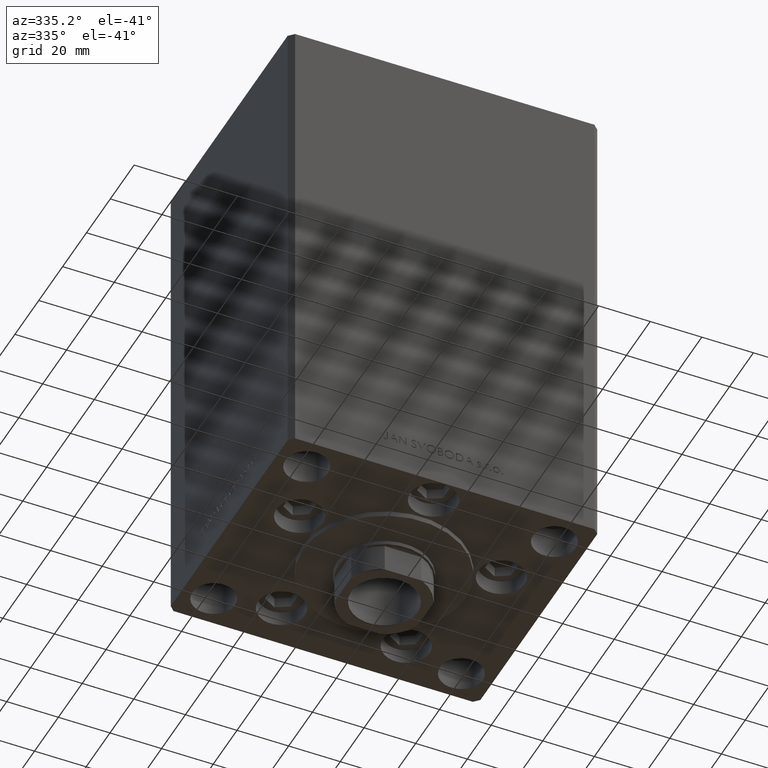
[diagram: clean part render]
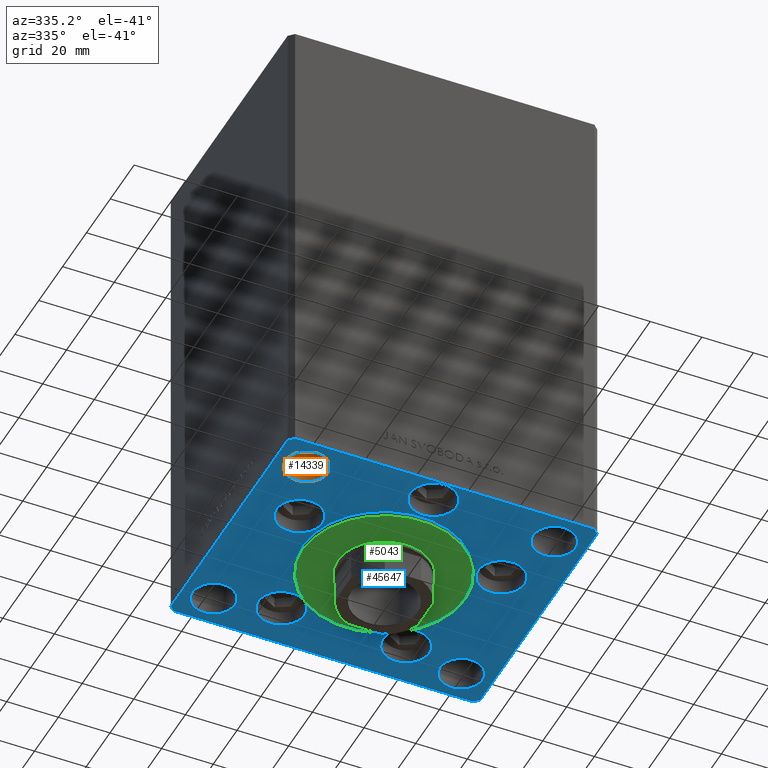
[diagram: same view with three faces highlighted in distinct colors, each labeled with its STEP entity id]
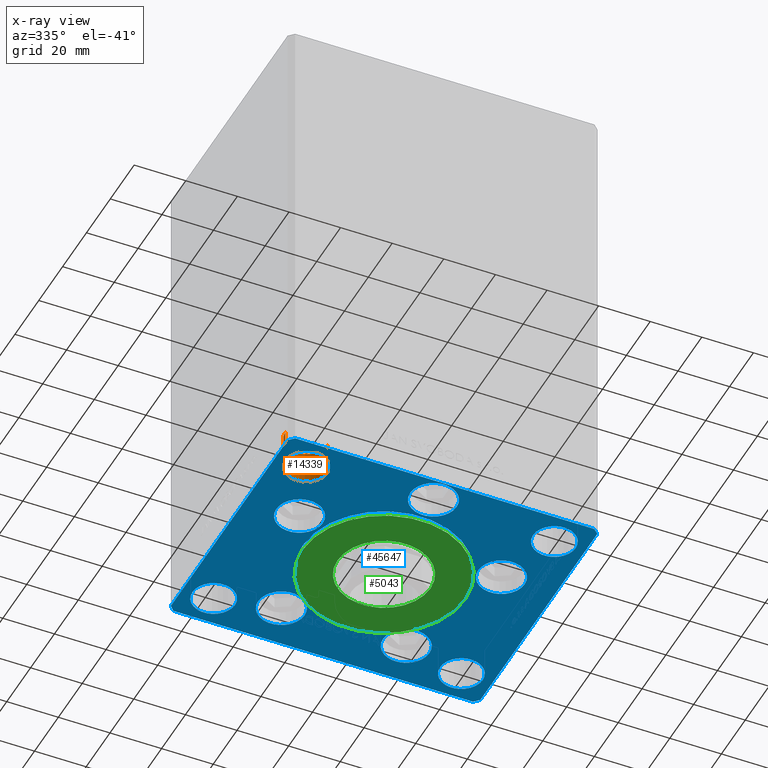
[diagram: x-ray of the same camera — body ghosted, the three highlighted faces saturated]
A machine part, auxiliary view with three faces highlighted in distinct colors.
The next image is the same camera in x-ray (body ghosted, the three faces saturated) — at least one of them is partly hidden behind the body in this view.
Their STEP definitions:

[orange] entity #14339 — the highlighted cylindrical surface (edge-blend (fillet) strip) has radius 8.25 mm, axis along (0, 0, -1).
#1310 = ORIENTED_EDGE ( 'NONE', *, *, #35070, .F. ) ;
#1383 = ORIENTED_EDGE ( 'NONE', *, *, #17207, .T. ) ;
#6439 = AXIS2_PLACEMENT_3D ( 'NONE', #7204, #10680, #33520 ) ;
#6691 = CARTESIAN_POINT ( 'NONE',  ( 48.00000000000000000, -39.00000000000001421, -13.00000000000000000 ) ) ;
#7204 = CARTESIAN_POINT ( 'NONE',  ( 48.00000000000000000, -39.00000000000001421, 0.000000000000000000 ) ) ;
#7436 = DIRECTION ( 'NONE',  ( -0.000000000000000000, -0.000000000000000000, 1.000000000000000000 ) ) ;
#9311 = DIRECTION ( 'NONE',  ( -0.000000000000000000, -0.000000000000000000, 1.000000000000000000 ) ) ;
#10680 = DIRECTION ( 'NONE',  ( 0.000000000000000000, 0.000000000000000000, 1.000000000000000000 ) ) ;
#12008 = CIRCLE ( 'NONE', #6439, 8.249999999999992895 ) ;
#14339 = ADVANCED_FACE ( 'NONE', ( #21591 ), #29047, .F. ) ;
#15363 = LINE ( 'NONE', #34482, #43894 ) ;
#15752 = VERTEX_POINT ( 'NONE', #41105 ) ;
#16129 = ORIENTED_EDGE ( 'NONE', *, *, #29216, .T. ) ;
#17207 = EDGE_CURVE ( 'NONE', #27604, #44335, #42360, .T. ) ;
#20562 = CARTESIAN_POINT ( 'NONE',  ( 56.24999999999999289, -39.00000000000001421, -13.00000000000000000 ) ) ;
#21591 = FACE_OUTER_BOUND ( 'NONE', #24556, .T. ) ;
#24450 = CARTESIAN_POINT ( 'NONE',  ( 56.24999999999999289, -39.00000000000001421, -13.00000000000000000 ) ) ;
#24556 = EDGE_LOOP ( 'NONE', ( #1310, #32283, #1383, #16129 ) ) ;
#24900 = VERTEX_POINT ( 'NONE', #25721 ) ;
#25721 = CARTESIAN_POINT ( 'NONE',  ( 39.75000000000000711, -39.00000000000001421, -13.00000000000000000 ) ) ;
#26920 = DIRECTION ( 'NONE',  ( 0.000000000000000000, 0.000000000000000000, 1.000000000000000000 ) ) ;
#27604 = VERTEX_POINT ( 'NONE', #20562 ) ;
#27652 = DIRECTION ( 'NONE',  ( 1.000000000000000000, 0.000000000000000000, 0.000000000000000000 ) ) ;
#28546 = VECTOR ( 'NONE', #9311, 1000.000000000000000 ) ;
#29047 = CYLINDRICAL_SURFACE ( 'NONE', #35615, 8.249999999999992895 ) ;
#29216 = EDGE_CURVE ( 'NONE', #44335, #15752, #12008, .T. ) ;
#31999 = CARTESIAN_POINT ( 'NONE',  ( 56.24999999999999289, -39.00000000000001421, 0.000000000000000000 ) ) ;
#32283 = ORIENTED_EDGE ( 'NONE', *, *, #46017, .F. ) ;
#33520 = DIRECTION ( 'NONE',  ( 1.000000000000000000, 0.000000000000000000, 0.000000000000000000 ) ) ;
#33803 = CIRCLE ( 'NONE', #45736, 8.249999999999992895 ) ;
#34237 = DIRECTION ( 'NONE',  ( -0.000000000000000000, -0.000000000000000000, 1.000000000000000000 ) ) ;
#34482 = CARTESIAN_POINT ( 'NONE',  ( 39.75000000000000711, -39.00000000000001421, -13.00000000000000000 ) ) ;
#35070 = EDGE_CURVE ( 'NONE', #24900, #15752, #15363, .T. ) ;
#35615 = AXIS2_PLACEMENT_3D ( 'NONE', #6691, #7436, #40965 ) ;
#40965 = DIRECTION ( 'NONE',  ( 1.000000000000000000, 0.000000000000000000, 0.000000000000000000 ) ) ;
#41105 = CARTESIAN_POINT ( 'NONE',  ( 39.75000000000000711, -39.00000000000001421, 0.000000000000000000 ) ) ;
#42360 = LINE ( 'NONE', #24450, #28546 ) ;
#43894 = VECTOR ( 'NONE', #34237, 1000.000000000000000 ) ;
#44335 = VERTEX_POINT ( 'NONE', #31999 ) ;
#45736 = AXIS2_PLACEMENT_3D ( 'NONE', #45803, #26920, #27652 ) ;
#45803 = CARTESIAN_POINT ( 'NONE',  ( 48.00000000000000000, -39.00000000000001421, -13.00000000000000000 ) ) ;
#46017 = EDGE_CURVE ( 'NONE', #27604, #24900, #33803, .T. ) ;

[blue] entity #45647 — the highlighted planar face has unit normal (0, 0, -1).
#89 = DIRECTION ( 'NONE',  ( 0.000000000000000000, 0.000000000000000000, 1.000000000000000000 ) ) ;
#141 = CARTESIAN_POINT ( 'NONE',  ( 56.24999999999999289, 39.00000000000000000, 0.000000000000000000 ) ) ;
#155 = CIRCLE ( 'NONE', #21558, 9.000000000000001776 ) ;
#257 = ORIENTED_EDGE ( 'NONE', *, *, #41084, .T. ) ;
#315 = VECTOR ( 'NONE', #1857, 1000.000000000000000 ) ;
#492 = EDGE_CURVE ( 'NONE', #34975, #44632, #21006, .T. ) ;
#601 = EDGE_LOOP ( 'NONE', ( #40443, #5049 ) ) ;
#613 = CARTESIAN_POINT ( 'NONE',  ( -39.12657522565563539, -13.83333333333332860, 0.000000000000000000 ) ) ;
#762 = VERTEX_POINT ( 'NONE', #29076 ) ;
#859 = CARTESIAN_POINT ( 'NONE',  ( 0.000000000000000000, 0.000000000000000000, 0.000000000000000000 ) ) ;
#1025 = VERTEX_POINT ( 'NONE', #18263 ) ;
#1074 = CARTESIAN_POINT ( 'NONE',  ( 48.00000000000000000, 39.00000000000000000, 0.000000000000000000 ) ) ;
#1107 = FACE_BOUND ( 'NONE', #601, .T. ) ;
#1115 = CIRCLE ( 'NONE', #37610, 8.249999999999992895 ) ;
#1392 = VERTEX_POINT ( 'NONE', #38557 ) ;
#1512 = ORIENTED_EDGE ( 'NONE', *, *, #10146, .F. ) ;
#1857 = DIRECTION ( 'NONE',  ( 1.000000000000000000, 9.570888143320313916E-16, 0.000000000000000000 ) ) ;
#2327 = EDGE_CURVE ( 'NONE', #21847, #27952, #39262, .T. ) ;
#2523 = LINE ( 'NONE', #29589, #45877 ) ;
#2831 = CARTESIAN_POINT ( 'NONE',  ( 39.12657522565563539, -13.83333333333332860, 0.000000000000000000 ) ) ;
#3249 = AXIS2_PLACEMENT_3D ( 'NONE', #36149, #17273, #9085 ) ;
#3334 = AXIS2_PLACEMENT_3D ( 'NONE', #27925, #16729, #43077 ) ;
#3413 = DIRECTION ( 'NONE',  ( 0.000000000000000000, 0.000000000000000000, 1.000000000000000000 ) ) ;
#3524 = CARTESIAN_POINT ( 'NONE',  ( 60.00000000000001421, -48.99999999999992895, 0.000000000000000000 ) ) ;
#3604 = CARTESIAN_POINT ( 'NONE',  ( 30.12657522565563539, -13.83333333333332682, 0.000000000000000000 ) ) ;
#4338 = DIRECTION ( 'NONE',  ( 1.000000000000000000, 0.000000000000000000, 0.000000000000000000 ) ) ;
#4455 = ORIENTED_EDGE ( 'NONE', *, *, #40245, .F. ) ;
#4586 = DIRECTION ( 'NONE',  ( 0.000000000000000000, 0.000000000000000000, 1.000000000000000000 ) ) ;
#4599 = FACE_OUTER_BOUND ( 'NONE', #11846, .T. ) ;
#4835 = CARTESIAN_POINT ( 'NONE',  ( -58.00000000000000711, -51.00000000000002842, 0.000000000000000000 ) ) ;
#5049 = ORIENTED_EDGE ( 'NONE', *, *, #28411, .F. ) ;
#5304 = AXIS2_PLACEMENT_3D ( 'NONE', #39549, #28363, #40282 ) ;
#5696 = EDGE_LOOP ( 'NONE', ( #8583, #24635 ) ) ;
#5837 = VECTOR ( 'NONE', #11316, 1000.000000000000114 ) ;
#6062 = DIRECTION ( 'NONE',  ( -0.7071067811865536790, 0.7071067811865414665, 0.000000000000000000 ) ) ;
#6216 = ORIENTED_EDGE ( 'NONE', *, *, #18763, .T. ) ;
#6439 = AXIS2_PLACEMENT_3D ( 'NONE', #7204, #10680, #33520 ) ;
#6512 = CIRCLE ( 'NONE', #34284, 9.000000000000000000 ) ;
#6551 = CIRCLE ( 'NONE', #25581, 8.249999999999992895 ) ;
#6763 = VERTEX_POINT ( 'NONE', #141 ) ;
#7065 = EDGE_CURVE ( 'NONE', #10676, #17987, #14879, .T. ) ;
#7098 = LINE ( 'NONE', #30430, #5837 ) ;
#7204 = CARTESIAN_POINT ( 'NONE',  ( 48.00000000000000000, -39.00000000000001421, 0.000000000000000000 ) ) ;
#7391 = CARTESIAN_POINT ( 'NONE',  ( 48.12657522565563539, -13.83333333333332860, 0.000000000000000000 ) ) ;
#7607 = DIRECTION ( 'NONE',  ( 0.000000000000000000, 0.000000000000000000, 1.000000000000000000 ) ) ;
#7870 = LINE ( 'NONE', #48866, #43046 ) ;
#8406 = EDGE_CURVE ( 'NONE', #17987, #10676, #12533, .T. ) ;
#8583 = ORIENTED_EDGE ( 'NONE', *, *, #21902, .F. ) ;
#8675 = LINE ( 'NONE', #16364, #22306 ) ;
#9085 = DIRECTION ( 'NONE',  ( 1.000000000000000000, 0.000000000000000000, 0.000000000000000000 ) ) ;
#9179 = DIRECTION ( 'NONE',  ( 0.000000000000000000, 0.000000000000000000, 1.000000000000000000 ) ) ;
#9202 = CARTESIAN_POINT ( 'NONE',  ( -24.19288941894913592, 33.71874999999998579, 0.000000000000000000 ) ) ;
#9284 = ORIENTED_EDGE ( 'NONE', *, *, #7065, .F. ) ;
#9428 = DIRECTION ( 'NONE',  ( 1.000000000000000000, 0.000000000000000000, 0.000000000000000000 ) ) ;
#9697 = CARTESIAN_POINT ( 'NONE',  ( -48.00000000000000000, -39.00000000000001421, 0.000000000000000000 ) ) ;
#10146 = EDGE_CURVE ( 'NONE', #11673, #6763, #17208, .T. ) ;
#10411 = ORIENTED_EDGE ( 'NONE', *, *, #22409, .F. ) ;
#10498 = EDGE_CURVE ( 'NONE', #19957, #29478, #41834, .T. ) ;
#10634 = EDGE_CURVE ( 'NONE', #26242, #30037, #34698, .T. ) ;
#10656 = CARTESIAN_POINT ( 'NONE',  ( 9.000000000000000000, -41.50000000000000000, 0.000000000000000000 ) ) ;
#10676 = VERTEX_POINT ( 'NONE', #31715 ) ;
#10680 = DIRECTION ( 'NONE',  ( 0.000000000000000000, 0.000000000000000000, 1.000000000000000000 ) ) ;
#11316 = DIRECTION ( 'NONE',  ( 0.7071067811865474617, -0.7071067811865474617, 0.000000000000000000 ) ) ;
#11356 = VERTEX_POINT ( 'NONE', #24575 ) ;
#11583 = ORIENTED_EDGE ( 'NONE', *, *, #40131, .T. ) ;
#11592 = DIRECTION ( 'NONE',  ( 0.7071067811865474617, 0.7071067811865474617, 0.000000000000000000 ) ) ;
#11673 = VERTEX_POINT ( 'NONE', #34733 ) ;
#11808 = FACE_BOUND ( 'NONE', #22408, .T. ) ;
#11846 = EDGE_LOOP ( 'NONE', ( #12796, #11583, #30357, #17989, #257, #17107, #6216, #45658 ) ) ;
#11962 = EDGE_LOOP ( 'NONE', ( #24845, #45043 ) ) ;
#12004 = DIRECTION ( 'NONE',  ( 0.000000000000000000, 0.000000000000000000, 1.000000000000000000 ) ) ;
#12008 = CIRCLE ( 'NONE', #6439, 8.249999999999992895 ) ;
#12026 = CARTESIAN_POINT ( 'NONE',  ( 58.00000000000000000, 51.00000000000000711, 0.000000000000000000 ) ) ;
#12046 = DIRECTION ( 'NONE',  ( 1.000000000000000000, 0.000000000000000000, 0.000000000000000000 ) ) ;
#12378 = CARTESIAN_POINT ( 'NONE',  ( 0.000000000000000000, -6.938893903907228378E-15, 0.000000000000000000 ) ) ;
#12533 = CIRCLE ( 'NONE', #46661, 9.000000000000000000 ) ;
#12796 = ORIENTED_EDGE ( 'NONE', *, *, #26188, .T. ) ;
#12996 = CIRCLE ( 'NONE', #19358, 8.249999999999992895 ) ;
#13037 = LINE ( 'NONE', #39616, #315 ) ;
#13173 = EDGE_CURVE ( 'NONE', #37785, #11356, #2523, .T. ) ;
#13562 = EDGE_CURVE ( 'NONE', #27452, #762, #30049, .T. ) ;
#13734 = EDGE_CURVE ( 'NONE', #29478, #19957, #28445, .T. ) ;
#14220 = VERTEX_POINT ( 'NONE', #28806 ) ;
#14593 = DIRECTION ( 'NONE',  ( 1.000000000000000000, 0.000000000000000000, 0.000000000000000000 ) ) ;
#14783 = ORIENTED_EDGE ( 'NONE', *, *, #36820, .F. ) ;
#14879 = CIRCLE ( 'NONE', #15667, 9.000000000000000000 ) ;
#14905 = VERTEX_POINT ( 'NONE', #45262 ) ;
#15303 = DIRECTION ( 'NONE',  ( 1.000000000000000000, 0.000000000000000000, 0.000000000000000000 ) ) ;
#15549 = AXIS2_PLACEMENT_3D ( 'NONE', #859, #19497, #12046 ) ;
#15667 = AXIS2_PLACEMENT_3D ( 'NONE', #43214, #9179, #9428 ) ;
#15752 = VERTEX_POINT ( 'NONE', #41105 ) ;
#16364 = CARTESIAN_POINT ( 'NONE',  ( -60.00000000000000000, 49.00000000000000000, 0.000000000000000000 ) ) ;
#16729 = DIRECTION ( 'NONE',  ( 0.000000000000000000, 0.000000000000000000, 1.000000000000000000 ) ) ;
#17031 = CARTESIAN_POINT ( 'NONE',  ( 60.00000000000001421, -48.99999999999992895, 0.000000000000000000 ) ) ;
#17107 = ORIENTED_EDGE ( 'NONE', *, *, #13173, .T. ) ;
#17208 = CIRCLE ( 'NONE', #5304, 8.249999999999992895 ) ;
#17273 = DIRECTION ( 'NONE',  ( 0.000000000000000000, 0.000000000000000000, 1.000000000000000000 ) ) ;
#17869 = ORIENTED_EDGE ( 'NONE', *, *, #2327, .F. ) ;
#17930 = DIRECTION ( 'NONE',  ( 0.000000000000000000, 1.000000000000000000, 0.000000000000000000 ) ) ;
#17987 = VERTEX_POINT ( 'NONE', #10656 ) ;
#17989 = ORIENTED_EDGE ( 'NONE', *, *, #46267, .T. ) ;
#18263 = CARTESIAN_POINT ( 'NONE',  ( 60.00000000000001421, 49.00000000000002842, 0.000000000000000000 ) ) ;
#18643 = AXIS2_PLACEMENT_3D ( 'NONE', #613, #4586, #4338 ) ;
#18763 = EDGE_CURVE ( 'NONE', #11356, #42685, #38885, .T. ) ;
#19358 = AXIS2_PLACEMENT_3D ( 'NONE', #38576, #12004, #42312 ) ;
#19497 = DIRECTION ( 'NONE',  ( -0.000000000000000000, 0.000000000000000000, 1.000000000000000000 ) ) ;
#19644 = CARTESIAN_POINT ( 'NONE',  ( -60.00000000000000000, 49.00000000000000000, 0.000000000000000000 ) ) ;
#19742 = FACE_BOUND ( 'NONE', #29125, .T. ) ;
#19806 = DIRECTION ( 'NONE',  ( 1.000000000000000000, 0.000000000000000000, 0.000000000000000000 ) ) ;
#19950 = DIRECTION ( 'NONE',  ( 1.000000000000000000, 0.000000000000000000, 0.000000000000000000 ) ) ;
#19957 = VERTEX_POINT ( 'NONE', #3604 ) ;
#20012 = DIRECTION ( 'NONE',  ( -0.7071067811865536790, -0.7071067811865414665, 0.000000000000000000 ) ) ;
#20198 = DIRECTION ( 'NONE',  ( 0.000000000000000000, 0.000000000000000000, 1.000000000000000000 ) ) ;
#20320 = VERTEX_POINT ( 'NONE', #31325 ) ;
#20610 = EDGE_CURVE ( 'NONE', #42685, #14220, #8675, .T. ) ;
#20757 = ORIENTED_EDGE ( 'NONE', *, *, #8406, .F. ) ;
#21006 = CIRCLE ( 'NONE', #18643, 9.000000000000001776 ) ;
#21558 = AXIS2_PLACEMENT_3D ( 'NONE', #48626, #3413, #14593 ) ;
#21588 = CARTESIAN_POINT ( 'NONE',  ( -31.50000000000000000, -6.938893903907228378E-15, 0.000000000000000000 ) ) ;
#21714 = CIRCLE ( 'NONE', #39159, 9.000000000000001776 ) ;
#21776 = ORIENTED_EDGE ( 'NONE', *, *, #40060, .F. ) ;
#21847 = VERTEX_POINT ( 'NONE', #26515 ) ;
#21902 = EDGE_CURVE ( 'NONE', #44632, #34975, #155, .T. ) ;
#21925 = AXIS2_PLACEMENT_3D ( 'NONE', #9697, #31124, #19950 ) ;
#22086 = VERTEX_POINT ( 'NONE', #17031 ) ;
#22306 = VECTOR ( 'NONE', #43443, 1000.000000000000000 ) ;
#22408 = EDGE_LOOP ( 'NONE', ( #14783, #1512 ) ) ;
#22409 = EDGE_CURVE ( 'NONE', #15752, #44335, #24748, .T. ) ;
#22970 = ORIENTED_EDGE ( 'NONE', *, *, #47373, .F. ) ;
#23345 = VECTOR ( 'NONE', #6062, 1000.000000000000000 ) ;
#23447 = AXIS2_PLACEMENT_3D ( 'NONE', #41142, #26483, #33930 ) ;
#23457 = FACE_BOUND ( 'NONE', #11962, .T. ) ;
#23961 = CARTESIAN_POINT ( 'NONE',  ( 24.19288941894913592, 33.71874999999998579, 0.000000000000000000 ) ) ;
#24262 = DIRECTION ( 'NONE',  ( 1.000000000000000000, 0.000000000000000000, 0.000000000000000000 ) ) ;
#24575 = CARTESIAN_POINT ( 'NONE',  ( -57.99999999999998579, 50.99999999999997868, 0.000000000000000000 ) ) ;
#24635 = ORIENTED_EDGE ( 'NONE', *, *, #492, .F. ) ;
#24748 = CIRCLE ( 'NONE', #3334, 8.249999999999992895 ) ;
#24753 = CARTESIAN_POINT ( 'NONE',  ( -48.00000000000000000, -39.00000000000001421, 0.000000000000000000 ) ) ;
#24845 = ORIENTED_EDGE ( 'NONE', *, *, #13734, .F. ) ;
#25429 = CARTESIAN_POINT ( 'NONE',  ( 60.00000000000001421, 49.00000000000002842, 0.000000000000000000 ) ) ;
#25581 = AXIS2_PLACEMENT_3D ( 'NONE', #1074, #20198, #38832 ) ;
#26188 = EDGE_CURVE ( 'NONE', #14220, #45578, #7098, .T. ) ;
#26242 = VERTEX_POINT ( 'NONE', #27200 ) ;
#26483 = DIRECTION ( 'NONE',  ( 0.000000000000000000, 0.000000000000000000, 1.000000000000000000 ) ) ;
#26515 = CARTESIAN_POINT ( 'NONE',  ( -15.19288941894913592, 33.71874999999998579, 0.000000000000000000 ) ) ;
#26564 = DIRECTION ( 'NONE',  ( 0.000000000000000000, 0.000000000000000000, 1.000000000000000000 ) ) ;
#27200 = CARTESIAN_POINT ( 'NONE',  ( -39.75000000000000711, -39.00000000000001421, 0.000000000000000000 ) ) ;
#27201 = PLANE ( 'NONE',  #15549 ) ;
#27401 = EDGE_LOOP ( 'NONE', ( #17869, #37294 ) ) ;
#27451 = VECTOR ( 'NONE', #17930, 1000.000000000000000 ) ;
#27452 = VERTEX_POINT ( 'NONE', #21588 ) ;
#27925 = CARTESIAN_POINT ( 'NONE',  ( 48.00000000000000000, -39.00000000000001421, 0.000000000000000000 ) ) ;
#27952 = VERTEX_POINT ( 'NONE', #33324 ) ;
#28363 = DIRECTION ( 'NONE',  ( 0.000000000000000000, 0.000000000000000000, 1.000000000000000000 ) ) ;
#28411 = EDGE_CURVE ( 'NONE', #762, #27452, #45286, .T. ) ;
#28445 = CIRCLE ( 'NONE', #41153, 9.000000000000001776 ) ;
#28806 = CARTESIAN_POINT ( 'NONE',  ( -60.00000000000000000, -49.00000000000004263, 0.000000000000000000 ) ) ;
#28914 = EDGE_CURVE ( 'NONE', #32964, #14905, #34984, .T. ) ;
#29076 = CARTESIAN_POINT ( 'NONE',  ( 31.50000000000000000, -3.081256486593065689E-15, 0.000000000000000000 ) ) ;
#29125 = EDGE_LOOP ( 'NONE', ( #41020, #22970 ) ) ;
#29161 = AXIS2_PLACEMENT_3D ( 'NONE', #24753, #43154, #24262 ) ;
#29216 = EDGE_CURVE ( 'NONE', #44335, #15752, #12008, .T. ) ;
#29366 = EDGE_LOOP ( 'NONE', ( #4455, #42415 ) ) ;
#29478 = VERTEX_POINT ( 'NONE', #7391 ) ;
#29589 = CARTESIAN_POINT ( 'NONE',  ( 58.00000000000000000, 51.00000000000000711, 0.000000000000000000 ) ) ;
#30037 = VERTEX_POINT ( 'NONE', #30608 ) ;
#30049 = CIRCLE ( 'NONE', #33225, 31.50000000000000000 ) ;
#30357 = ORIENTED_EDGE ( 'NONE', *, *, #36426, .T. ) ;
#30430 = CARTESIAN_POINT ( 'NONE',  ( -60.00000000000000000, -49.00000000000004263, 0.000000000000000000 ) ) ;
#30514 = CARTESIAN_POINT ( 'NONE',  ( 58.00000000000001421, -50.99999999999992184, 0.000000000000000000 ) ) ;
#30608 = CARTESIAN_POINT ( 'NONE',  ( -56.24999999999999289, -39.00000000000001421, 0.000000000000000000 ) ) ;
#30644 = CIRCLE ( 'NONE', #21925, 8.249999999999992895 ) ;
#30675 = FACE_BOUND ( 'NONE', #33825, .T. ) ;
#31124 = DIRECTION ( 'NONE',  ( 0.000000000000000000, 0.000000000000000000, 1.000000000000000000 ) ) ;
#31325 = CARTESIAN_POINT ( 'NONE',  ( -39.75000000000000711, 39.00000000000000711, 0.000000000000000000 ) ) ;
#31397 = FACE_BOUND ( 'NONE', #27401, .T. ) ;
#31414 = DIRECTION ( 'NONE',  ( 0.000000000000000000, 0.000000000000000000, 1.000000000000000000 ) ) ;
#31715 = CARTESIAN_POINT ( 'NONE',  ( -9.000000000000000000, -41.50000000000000000, 0.000000000000000000 ) ) ;
#31999 = CARTESIAN_POINT ( 'NONE',  ( 56.24999999999999289, -39.00000000000001421, 0.000000000000000000 ) ) ;
#32793 = CARTESIAN_POINT ( 'NONE',  ( 0.000000000000000000, -41.50000000000000000, 0.000000000000000000 ) ) ;
#32964 = VERTEX_POINT ( 'NONE', #46746 ) ;
#33195 = CARTESIAN_POINT ( 'NONE',  ( -48.00000000000000000, 39.00000000000000711, 0.000000000000000000 ) ) ;
#33225 = AXIS2_PLACEMENT_3D ( 'NONE', #41892, #7607, #15303 ) ;
#33311 = DIRECTION ( 'NONE',  ( -1.000000000000000000, -2.392722035830078972E-16, 0.000000000000000000 ) ) ;
#33324 = CARTESIAN_POINT ( 'NONE',  ( -33.19288941894913592, 33.71874999999998579, 0.000000000000000000 ) ) ;
#33381 = AXIS2_PLACEMENT_3D ( 'NONE', #12378, #26564, #41714 ) ;
#33483 = CARTESIAN_POINT ( 'NONE',  ( -48.12657522565563539, -13.83333333333332682, 0.000000000000000000 ) ) ;
#33520 = DIRECTION ( 'NONE',  ( 1.000000000000000000, 0.000000000000000000, 0.000000000000000000 ) ) ;
#33825 = EDGE_LOOP ( 'NONE', ( #20757, #9284 ) ) ;
#33930 = DIRECTION ( 'NONE',  ( 1.000000000000000000, 0.000000000000000000, 0.000000000000000000 ) ) ;
#34284 = AXIS2_PLACEMENT_3D ( 'NONE', #9202, #43480, #38772 ) ;
#34652 = FACE_BOUND ( 'NONE', #41978, .T. ) ;
#34698 = CIRCLE ( 'NONE', #29161, 8.249999999999992895 ) ;
#34733 = CARTESIAN_POINT ( 'NONE',  ( 39.75000000000000711, 39.00000000000000000, 0.000000000000000000 ) ) ;
#34910 = DIRECTION ( 'NONE',  ( 1.000000000000000000, 0.000000000000000000, 0.000000000000000000 ) ) ;
#34975 = VERTEX_POINT ( 'NONE', #33483 ) ;
#34984 = CIRCLE ( 'NONE', #3249, 9.000000000000001776 ) ;
#35183 = EDGE_LOOP ( 'NONE', ( #43179, #21776 ) ) ;
#35425 = VERTEX_POINT ( 'NONE', #30514 ) ;
#36037 = EDGE_CURVE ( 'NONE', #27952, #21847, #6512, .T. ) ;
#36149 = CARTESIAN_POINT ( 'NONE',  ( 24.19288941894913592, 33.71874999999998579, 0.000000000000000000 ) ) ;
#36426 = EDGE_CURVE ( 'NONE', #35425, #22086, #7870, .T. ) ;
#36820 = EDGE_CURVE ( 'NONE', #6763, #11673, #6551, .T. ) ;
#36928 = DIRECTION ( 'NONE',  ( 1.000000000000000000, 0.000000000000000000, 0.000000000000000000 ) ) ;
#37011 = ORIENTED_EDGE ( 'NONE', *, *, #29216, .F. ) ;
#37151 = CARTESIAN_POINT ( 'NONE',  ( -30.12657522565563539, -13.83333333333332860, 0.000000000000000000 ) ) ;
#37294 = ORIENTED_EDGE ( 'NONE', *, *, #36037, .F. ) ;
#37610 = AXIS2_PLACEMENT_3D ( 'NONE', #33195, #48356, #36928 ) ;
#37785 = VERTEX_POINT ( 'NONE', #12026 ) ;
#37890 = AXIS2_PLACEMENT_3D ( 'NONE', #38923, #46392, #19806 ) ;
#38557 = CARTESIAN_POINT ( 'NONE',  ( -56.24999999999999289, 39.00000000000000711, 0.000000000000000000 ) ) ;
#38576 = CARTESIAN_POINT ( 'NONE',  ( -48.00000000000000000, 39.00000000000000711, 0.000000000000000000 ) ) ;
#38616 = FACE_BOUND ( 'NONE', #29366, .T. ) ;
#38772 = DIRECTION ( 'NONE',  ( 1.000000000000000000, 0.000000000000000000, 0.000000000000000000 ) ) ;
#38832 = DIRECTION ( 'NONE',  ( 1.000000000000000000, 0.000000000000000000, 0.000000000000000000 ) ) ;
#38885 = LINE ( 'NONE', #42142, #38898 ) ;
#38898 = VECTOR ( 'NONE', #20012, 1000.000000000000000 ) ;
#38923 = CARTESIAN_POINT ( 'NONE',  ( 39.12657522565563539, -13.83333333333332860, 0.000000000000000000 ) ) ;
#39159 = AXIS2_PLACEMENT_3D ( 'NONE', #23961, #31414, #34910 ) ;
#39262 = CIRCLE ( 'NONE', #23447, 9.000000000000000000 ) ;
#39549 = CARTESIAN_POINT ( 'NONE',  ( 48.00000000000000000, 39.00000000000000000, 0.000000000000000000 ) ) ;
#39616 = CARTESIAN_POINT ( 'NONE',  ( -58.00000000000000711, -51.00000000000002842, 0.000000000000000000 ) ) ;
#39901 = EDGE_CURVE ( 'NONE', #1392, #20320, #1115, .T. ) ;
#40060 = EDGE_CURVE ( 'NONE', #14905, #32964, #21714, .T. ) ;
#40131 = EDGE_CURVE ( 'NONE', #45578, #35425, #13037, .T. ) ;
#40245 = EDGE_CURVE ( 'NONE', #20320, #1392, #12996, .T. ) ;
#40282 = DIRECTION ( 'NONE',  ( 1.000000000000000000, 0.000000000000000000, 0.000000000000000000 ) ) ;
#40443 = ORIENTED_EDGE ( 'NONE', *, *, #13562, .F. ) ;
#41020 = ORIENTED_EDGE ( 'NONE', *, *, #10634, .F. ) ;
#41028 = LINE ( 'NONE', #3524, #27451 ) ;
#41084 = EDGE_CURVE ( 'NONE', #1025, #37785, #44562, .T. ) ;
#41105 = CARTESIAN_POINT ( 'NONE',  ( 39.75000000000000711, -39.00000000000001421, 0.000000000000000000 ) ) ;
#41142 = CARTESIAN_POINT ( 'NONE',  ( -24.19288941894913592, 33.71874999999998579, 0.000000000000000000 ) ) ;
#41153 = AXIS2_PLACEMENT_3D ( 'NONE', #2831, #89, #45307 ) ;
#41239 = DIRECTION ( 'NONE',  ( 1.000000000000000000, 0.000000000000000000, 0.000000000000000000 ) ) ;
#41714 = DIRECTION ( 'NONE',  ( 1.000000000000000000, 0.000000000000000000, 0.000000000000000000 ) ) ;
#41834 = CIRCLE ( 'NONE', #37890, 9.000000000000001776 ) ;
#41892 = CARTESIAN_POINT ( 'NONE',  ( 0.000000000000000000, -6.938893903907228378E-15, 0.000000000000000000 ) ) ;
#41978 = EDGE_LOOP ( 'NONE', ( #37011, #10411 ) ) ;
#42142 = CARTESIAN_POINT ( 'NONE',  ( -57.99999999999998579, 50.99999999999997868, 0.000000000000000000 ) ) ;
#42312 = DIRECTION ( 'NONE',  ( 1.000000000000000000, 0.000000000000000000, 0.000000000000000000 ) ) ;
#42415 = ORIENTED_EDGE ( 'NONE', *, *, #39901, .F. ) ;
#42685 = VERTEX_POINT ( 'NONE', #19644 ) ;
#43046 = VECTOR ( 'NONE', #11592, 1000.000000000000114 ) ;
#43077 = DIRECTION ( 'NONE',  ( 1.000000000000000000, 0.000000000000000000, 0.000000000000000000 ) ) ;
#43154 = DIRECTION ( 'NONE',  ( 0.000000000000000000, 0.000000000000000000, 1.000000000000000000 ) ) ;
#43179 = ORIENTED_EDGE ( 'NONE', *, *, #28914, .F. ) ;
#43214 = CARTESIAN_POINT ( 'NONE',  ( 0.000000000000000000, -41.50000000000000000, 0.000000000000000000 ) ) ;
#43443 = DIRECTION ( 'NONE',  ( 0.000000000000000000, -1.000000000000000000, 0.000000000000000000 ) ) ;
#43480 = DIRECTION ( 'NONE',  ( 0.000000000000000000, 0.000000000000000000, 1.000000000000000000 ) ) ;
#44335 = VERTEX_POINT ( 'NONE', #31999 ) ;
#44562 = LINE ( 'NONE', #25429, #23345 ) ;
#44632 = VERTEX_POINT ( 'NONE', #37151 ) ;
#45043 = ORIENTED_EDGE ( 'NONE', *, *, #10498, .F. ) ;
#45262 = CARTESIAN_POINT ( 'NONE',  ( 15.19288941894913236, 33.71874999999998579, 0.000000000000000000 ) ) ;
#45286 = CIRCLE ( 'NONE', #33381, 31.50000000000000000 ) ;
#45307 = DIRECTION ( 'NONE',  ( 1.000000000000000000, 0.000000000000000000, 0.000000000000000000 ) ) ;
#45578 = VERTEX_POINT ( 'NONE', #4835 ) ;
#45647 = ADVANCED_FACE ( 'NONE', ( #1107, #31397, #46569, #23457, #30675, #45847, #11808, #38616, #19742, #34652, #4599 ), #27201, .T. ) ;
#45658 = ORIENTED_EDGE ( 'NONE', *, *, #20610, .T. ) ;
#45847 = FACE_BOUND ( 'NONE', #5696, .T. ) ;
#45877 = VECTOR ( 'NONE', #33311, 1000.000000000000000 ) ;
#46267 = EDGE_CURVE ( 'NONE', #22086, #1025, #41028, .T. ) ;
#46392 = DIRECTION ( 'NONE',  ( 0.000000000000000000, 0.000000000000000000, 1.000000000000000000 ) ) ;
#46569 = FACE_BOUND ( 'NONE', #35183, .T. ) ;
#46661 = AXIS2_PLACEMENT_3D ( 'NONE', #32793, #47955, #41239 ) ;
#46746 = CARTESIAN_POINT ( 'NONE',  ( 33.19288941894913592, 33.71874999999998579, 0.000000000000000000 ) ) ;
#47373 = EDGE_CURVE ( 'NONE', #30037, #26242, #30644, .T. ) ;
#47955 = DIRECTION ( 'NONE',  ( 0.000000000000000000, 0.000000000000000000, 1.000000000000000000 ) ) ;
#48356 = DIRECTION ( 'NONE',  ( 0.000000000000000000, 0.000000000000000000, 1.000000000000000000 ) ) ;
#48626 = CARTESIAN_POINT ( 'NONE',  ( -39.12657522565563539, -13.83333333333332860, 0.000000000000000000 ) ) ;
#48866 = CARTESIAN_POINT ( 'NONE',  ( 58.00000000000001421, -50.99999999999992184, 0.000000000000000000 ) ) ;

[green] entity #5043 — the highlighted planar face has unit normal (0, 0, -1).
#890 = CARTESIAN_POINT ( 'NONE',  ( 18.00000000000000000, -6.938893903907228378E-15, 2.000000000000000000 ) ) ;
#1213 = DIRECTION ( 'NONE',  ( 1.000000000000000000, 0.000000000000000000, -0.000000000000000000 ) ) ;
#3228 = PLANE ( 'NONE',  #30647 ) ;
#5043 = ADVANCED_FACE ( 'NONE', ( #22107, #37266 ), #3228, .T. ) ;
#5197 = DIRECTION ( 'NONE',  ( 0.000000000000000000, 0.000000000000000000, 1.000000000000000000 ) ) ;
#5977 = DIRECTION ( 'NONE',  ( 0.000000000000000000, 0.000000000000000000, 1.000000000000000000 ) ) ;
#9216 = EDGE_LOOP ( 'NONE', ( #11625, #48863 ) ) ;
#9613 = CIRCLE ( 'NONE', #27850, 31.50000000000000000 ) ;
#9705 = DIRECTION ( 'NONE',  ( 1.000000000000000000, 0.000000000000000000, 0.000000000000000000 ) ) ;
#10570 = CARTESIAN_POINT ( 'NONE',  ( 31.50000000000000000, -3.081256486593065689E-15, 2.000000000000000000 ) ) ;
#10682 = CARTESIAN_POINT ( 'NONE',  ( 0.000000000000000000, -6.938893903907228378E-15, 2.000000000000000000 ) ) ;
#11625 = ORIENTED_EDGE ( 'NONE', *, *, #13164, .F. ) ;
#11909 = CARTESIAN_POINT ( 'NONE',  ( 0.000000000000000000, -6.938893903907228378E-15, 2.000000000000000000 ) ) ;
#13127 = EDGE_LOOP ( 'NONE', ( #30526, #36690 ) ) ;
#13164 = EDGE_CURVE ( 'NONE', #21240, #47400, #39511, .T. ) ;
#14440 = DIRECTION ( 'NONE',  ( 0.000000000000000000, 0.000000000000000000, 1.000000000000000000 ) ) ;
#15949 = AXIS2_PLACEMENT_3D ( 'NONE', #33210, #17823, #32971 ) ;
#17823 = DIRECTION ( 'NONE',  ( 0.000000000000000000, 0.000000000000000000, 1.000000000000000000 ) ) ;
#19549 = EDGE_CURVE ( 'NONE', #29468, #35227, #9613, .T. ) ;
#20337 = EDGE_CURVE ( 'NONE', #35227, #29468, #46156, .T. ) ;
#20895 = DIRECTION ( 'NONE',  ( 0.000000000000000000, 0.000000000000000000, 1.000000000000000000 ) ) ;
#21240 = VERTEX_POINT ( 'NONE', #890 ) ;
#22107 = FACE_BOUND ( 'NONE', #9216, .T. ) ;
#26266 = CARTESIAN_POINT ( 'NONE',  ( -31.50000000000000000, -6.938893903907228378E-15, 2.000000000000000000 ) ) ;
#27850 = AXIS2_PLACEMENT_3D ( 'NONE', #10682, #5977, #9705 ) ;
#28639 = EDGE_CURVE ( 'NONE', #47400, #21240, #29415, .T. ) ;
#29415 = CIRCLE ( 'NONE', #15949, 18.00000000000000000 ) ;
#29468 = VERTEX_POINT ( 'NONE', #26266 ) ;
#30526 = ORIENTED_EDGE ( 'NONE', *, *, #19549, .T. ) ;
#30647 = AXIS2_PLACEMENT_3D ( 'NONE', #11909, #5197, #1213 ) ;
#32971 = DIRECTION ( 'NONE',  ( 1.000000000000000000, 0.000000000000000000, 0.000000000000000000 ) ) ;
#33210 = CARTESIAN_POINT ( 'NONE',  ( 0.000000000000000000, -6.938893903907228378E-15, 2.000000000000000000 ) ) ;
#35067 = DIRECTION ( 'NONE',  ( 1.000000000000000000, 0.000000000000000000, 0.000000000000000000 ) ) ;
#35227 = VERTEX_POINT ( 'NONE', #10570 ) ;
#35310 = CARTESIAN_POINT ( 'NONE',  ( 0.000000000000000000, -6.938893903907228378E-15, 2.000000000000000000 ) ) ;
#36690 = ORIENTED_EDGE ( 'NONE', *, *, #20337, .T. ) ;
#37266 = FACE_OUTER_BOUND ( 'NONE', #13127, .T. ) ;
#37417 = AXIS2_PLACEMENT_3D ( 'NONE', #35310, #20895, #35067 ) ;
#37960 = AXIS2_PLACEMENT_3D ( 'NONE', #48724, #14440, #48473 ) ;
#39511 = CIRCLE ( 'NONE', #37960, 18.00000000000000000 ) ;
#46156 = CIRCLE ( 'NONE', #37417, 31.50000000000000000 ) ;
#47400 = VERTEX_POINT ( 'NONE', #47948 ) ;
#47948 = CARTESIAN_POINT ( 'NONE',  ( -18.00000000000000000, -4.734529665441992555E-15, 2.000000000000000000 ) ) ;
#48473 = DIRECTION ( 'NONE',  ( 1.000000000000000000, 0.000000000000000000, 0.000000000000000000 ) ) ;
#48724 = CARTESIAN_POINT ( 'NONE',  ( 0.000000000000000000, -6.938893903907228378E-15, 2.000000000000000000 ) ) ;
#48863 = ORIENTED_EDGE ( 'NONE', *, *, #28639, .F. ) ;